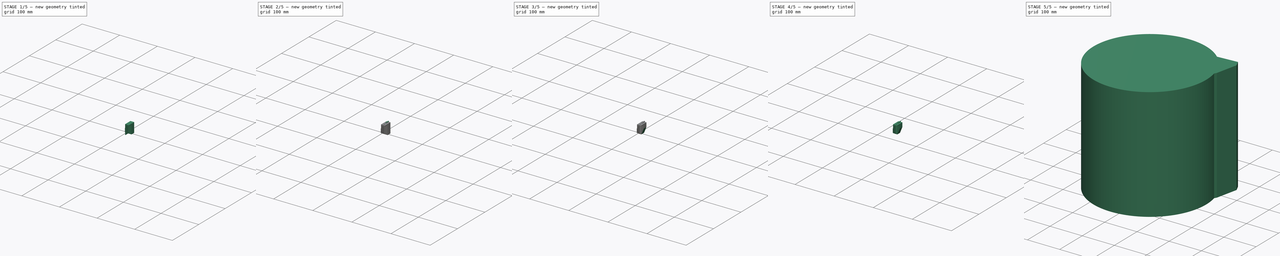
[diagram: build sequence overview — one tinted view per stage of 5, left to right]
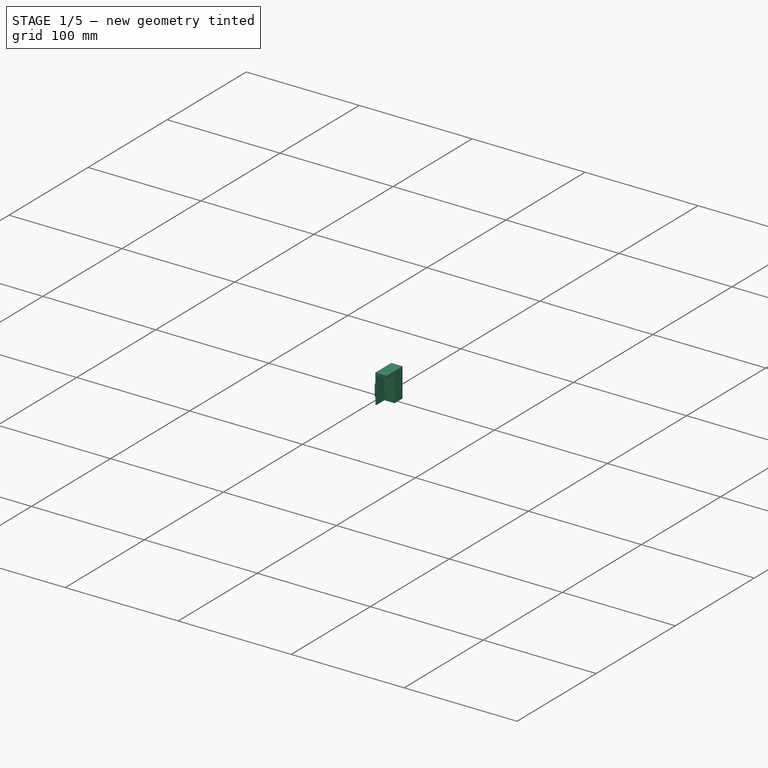
[diagram: stage 1 of 5 — iso view after this stage's code; geometry added in this stage tinted green]
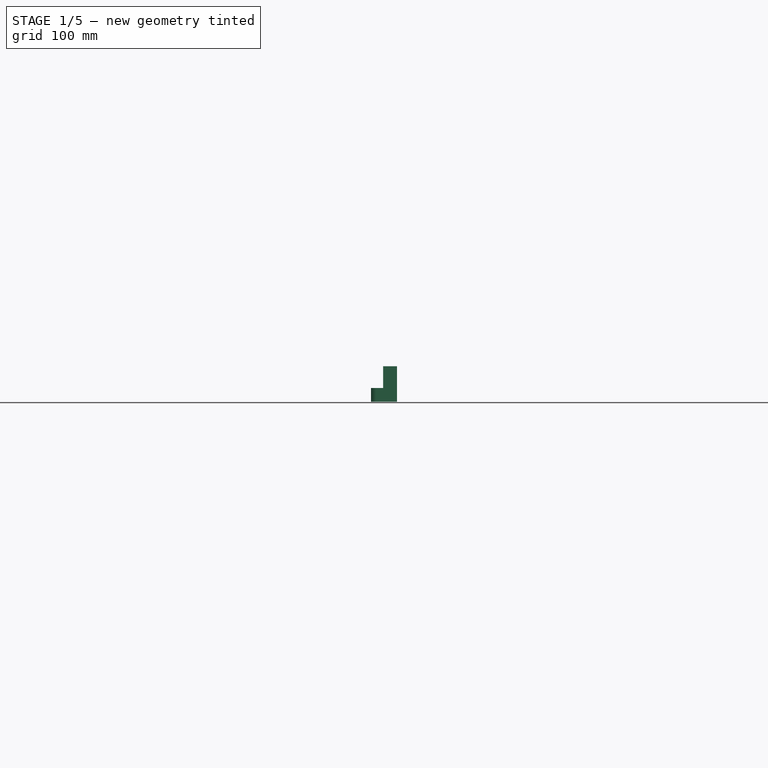
[diagram: stage 1 of 5 — front view after this stage's code; geometry added in this stage tinted green]
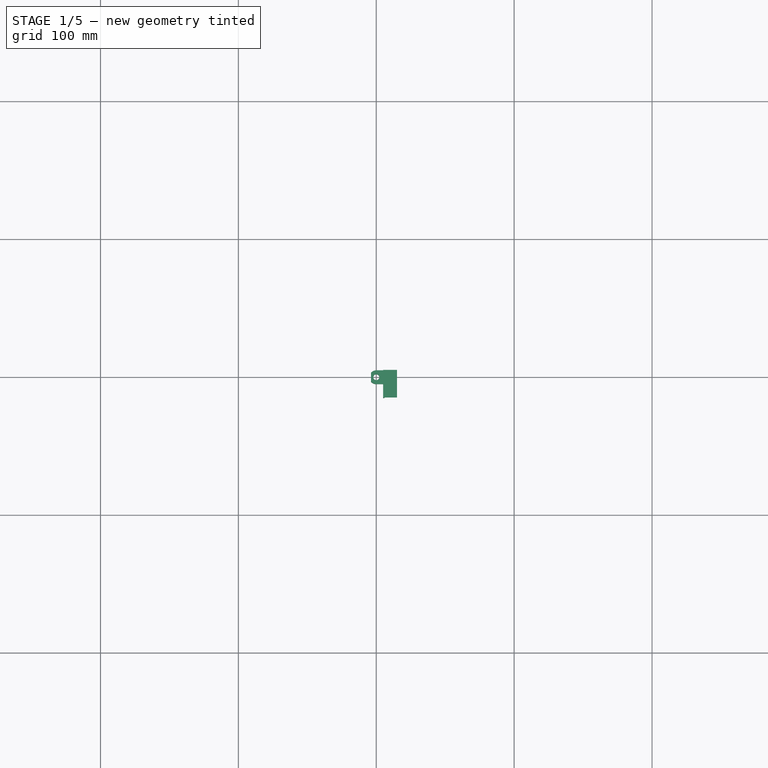
[diagram: stage 1 of 5 — top view after this stage's code; geometry added in this stage tinted green]
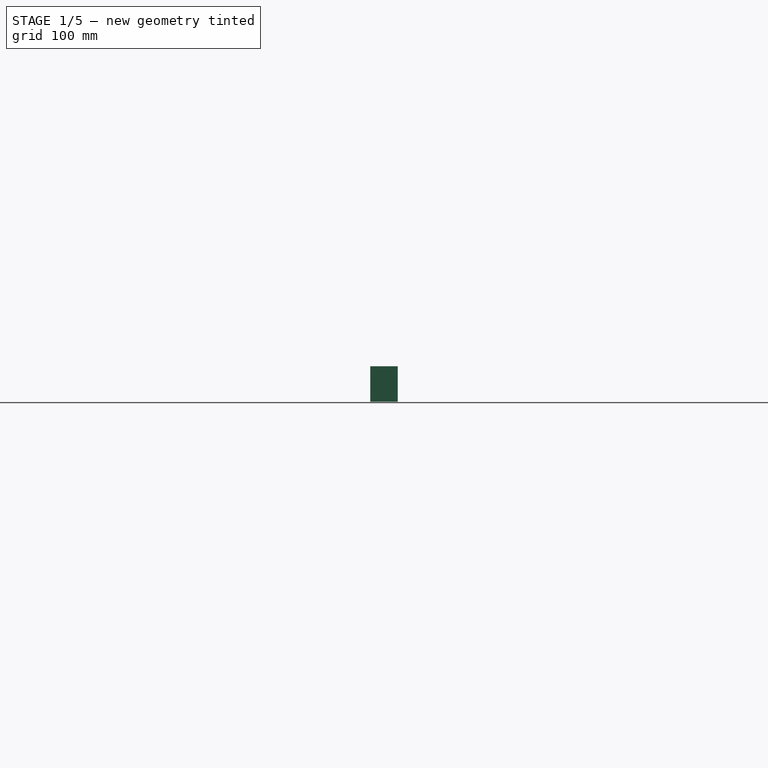
[diagram: stage 1 of 5 — right view after this stage's code; geometry added in this stage tinted green]
FCSTD DOCUMENT  (FreeCAD 2023.131R26244 +5365 (Git))
Label: robot_holonome
License: Creative Commons Attribution-NoDerivatives
LicenseURL: http://creativecommons.org/licenses/by-nd/4.0/
objects: App::Link×18, Sketcher::SketchObject×9, PartDesign::Pad×7, PartDesign::Chamfer×6, App::DocumentObjectGroup×5, PartDesign::Body×5, PartDesign::Fillet×4, App::Part×4, App::VRMLObject×2, PartDesign::Pocket×2, PartDesign::FeatureBase×1, Part::Mirroring×1
note: 83 computed .brp shape members not serialized (recipe doc carries the construction recipe); baked Part::Feature solids carry a one-line shape summary decoded from their .brp
EXTERNAL_REF file=mechanical-parts/structures.FCStd obj=Part007
EXTERNAL_REF file=mechanical-parts/colonne-moteur.FCStd obj=Part005
EXTERNAL_REF file=mechanical-parts/structures.FCStd obj=Body024
EXTERNAL_REF file=mechanical-parts/structures.FCStd obj=Part010
EXTERNAL_REF file=mechanical-parts/structures.FCStd obj=Part011
EXTERNAL_REF file=mechanical-parts/structures.FCStd obj=Part012
EXTERNAL_REF file=electronical-parts/battery-assembled.FCStd obj=Part
EXTERNAL_REF file=electronical-parts/beacon_assembled.FCStd obj=Part
EXTERNAL_REF file=mechanical-parts/colonne-moteur.FCStd obj=Body072
EXTERNAL_REF file=mechanical-parts/colonne-moteur.FCStd obj=Body074
EXTERNAL_REF file=mechanical-parts/colonne-moteur.FCStd obj=Body076
EXTERNAL_REF file=mechanical-parts/colonne-moteur.FCStd obj=Part009
EXTERNAL_REF file=mechanical-parts/colonne-moteur.FCStd obj=Body085
EXTERNAL_REF file=electronical-parts/deplacement-sensor.FCStd obj=Part

FEATURE [PartDesign::Body] Body002  label="Perimètre Déployé"
  AutoGroupSolids = false
  ClaimAllChildren = false
  ExportMode = 0
  Group = -> [Sketch002,Pad002]
  InvalidShape = false
  Origin = -> Origin003
  SingleSolid = true
  Tip = -> Pad002
  TreeRank = 50
  ValidateShape = true
  _ExportChildren = -> [Pad002]
  _GroupVersion = 1
FEATURE [App::DocumentObjectGroup] Group004  label="Périmètres"
  ClaimAllChildren = true
  ExportMode = 1
  Group = -> [Body001,Body,Body002]
  TreeRank = 53
  _GroupVersion = 1
FEATURE [App::Link] Link035  label="Link035(EnsembleCarterEquipeLED)"
  AutoLinkLabel = true
  AutoPlacement = true
  LinkPlacement = pos=(38.9711,-22.5,0) rot=(0,0,1;4.18879rad)
  LinkedObject = -> <external mechanical-parts/colonne-moteur.FCStd>#Part009
  Placement = pos=(38.9711,-22.5,0) rot=(0,0,1;4.18879rad)
  SyncGroupVisibility = false
  TreeRank = 59
  _LinkVersion = 1
FEATURE [App::VRMLObject] MainBoard_2023  label="MainBoard-2023"
  TreeRank = 64
FEATURE [Sketcher::SketchObject] Sketch003
  ArcFitTolerance = 1e-06
  AttachmentSupport = -> [XY_Plane005]
  ExternalBSplineMaxDegree = 0
  ExternalBSplineTolerance = 0
  FullyConstrained = true
  InternalTolerance = 1e-06
  InvalidShape = false
  MakeInternals = false
  MapMode = 5
  Support = -> [XY_Plane005]
  TreeRank = 87
  ValidateShape = true
  sketch-geometry (4):
    g0: Circle CenterX=8.3626e-12 CenterY=-5.2062e-12 CenterZ=0 NormalX=0 NormalY=0 NormalZ=1 AngleXU=0 Radius=2.15
    g1: Circle [constr] CenterX=8.3626e-12 CenterY=-5.2062e-12 CenterZ=0 NormalX=0 NormalY=0 NormalZ=1 AngleXU=0 Radius=5
    g2: LineSegment StartX=-3.8 StartY=3.24962 StartZ=0 EndX=-3.8 EndY=-3.24962 EndZ=0
    g3: ArcOfCircle CenterX=8.3626e-12 CenterY=-5.2062e-12 CenterZ=0 NormalX=0 NormalY=0 NormalZ=1 AngleXU=0 Radius=5 StartAngle=3.84908 EndAngle=8.71729
  constraints (10):
    c: Coincident(g0,g-1)
    c: Diameter(g0) = 4.3
    c: Coincident(g1,g0)
    c: Diameter(g1) = 10
    c: PointOnObject(g2,g1)
    c: Vertical(g2)
    c: Coincident(g3,g0)
    c: Coincident(g3,g2)
    c: Coincident(g3,g2)
    c: DistanceX(g2,g0) = 3.8
FEATURE [PartDesign::Pad] Pad003
  AddSubType = 0
  AlongSketchNormal = false
  AutoTaperInnerAngle = false
  CheckUpToFaceLimits = true
  ClaimChildren = false
  Direction = (0,0,1)
  Fit = 0
  FitJoin = 0
  InnerFit = 0
  InnerFitJoin = 0
  InvalidShape = false
  Length = 10
  Length2 = 100
  Linearize = true
  NewSolid = false
  Profile = -> Sketch003
  Refine = true
  Reversed = true
  Suppress = false
  TaperInnerAngle = 0
  TaperInnerAngleRev = 0
  TreeRank = 88
  Type = 0
  ValidateShape = true
  _ProfileBasedVersion = 1
FEATURE [Sketcher::SketchObject] Sketch004
  ArcFitTolerance = 1e-06
  AttachmentSupport = -> [XY_Plane005]
  ExternalBSplineMaxDegree = 0
  ExternalBSplineTolerance = 0
  ExternalGeometry = -> [Pad003]
  FullyConstrained = true
  InternalTolerance = 1e-06
  InvalidShape = false
  MakeInternals = false
  MapMode = 5
  Support = -> [XY_Plane005]
  TreeRank = 89
  ValidateShape = true
  sketch-geometry (6):
    g0: LineSegment StartX=7.635e-13 StartY=5 StartZ=0 EndX=15 EndY=5 EndZ=0
    g1: LineSegment StartX=15 StartY=5 StartZ=0 EndX=15 EndY=-5 EndZ=0
    g2: LineSegment StartX=15 StartY=-5 StartZ=0 EndX=1.16263e-11 EndY=-5 EndZ=0
    g3: ArcOfCircle CenterX=-6.5426e-12 CenterY=1.87137e-11 CenterZ=0 NormalX=0 NormalY=0 NormalZ=1 AngleXU=0 Radius=3 StartAngle=4.71239 EndAngle=7.85398
    g4: LineSegment StartX=7.635e-13 StartY=3 StartZ=0 EndX=7.635e-13 EndY=5 EndZ=0
    g5: LineSegment StartX=3.91808e-11 StartY=-3 StartZ=0 EndX=1.16262e-11 EndY=-5 EndZ=0
  constraints (17):
    c: PointOnObject(g0,g-2)
    c: Horizontal(g0)
    c: Coincident(g1,g0)
    c: Vertical(g1)
    c: Coincident(g2,g1)
    c: Horizontal(g2)
    c: Symmetric(g2,g0,g-1)
    c: PointOnObject(g0,g-3)
    c: Coincident(g3,g-3)
    c: PointOnObject(g3,g-2)
    c: Coincident(g4,g3)
    c: Coincident(g4,g0)
    c: Vertical(g4)
    c: Coincident(g5,g3)
    c: Coincident(g5,g2)
    c: Radius(g3) = 3
    c: DistanceX(g3,g0) = 15
FEATURE [PartDesign::Pad] Pad004
  AddSubType = 0
  AlongSketchNormal = false
  AutoTaperInnerAngle = false
  BaseFeature = -> Pad003
  CheckUpToFaceLimits = true
  ClaimChildren = false
  Direction = (0,0,1)
  Fit = 0
  FitJoin = 0
  InnerFit = 0
  InnerFitJoin = 0
  InvalidShape = false
  Length = 4
  Length2 = 100
  Linearize = true
  NewSolid = false
  Profile = -> Sketch004
  Refine = true
  Reversed = true
  Suppress = false
  TaperInnerAngle = 0
  TaperInnerAngleRev = 0
  TreeRank = 90
  Type = 3
  UpToFace = -> Pad003 [Face5]
  ValidateShape = true
  _ProfileBasedVersion = 1
FEATURE [Sketcher::SketchObject] Sketch005
  ArcFitTolerance = 1e-06
  AttachmentSupport = -> [XY_Plane005]
  ExternalBSplineMaxDegree = 0
  ExternalBSplineTolerance = 0
  ExternalGeometry = -> [Pad004]
  FullyConstrained = true
  InternalTolerance = 1e-06
  InvalidShape = false
  MakeInternals = false
  MapMode = 5
  Support = -> [XY_Plane005]
  TreeRank = 91
  ValidateShape = true
  sketch-geometry (4):
    g0: LineSegment StartX=15 StartY=5 StartZ=0 EndX=5 EndY=5 EndZ=0
    g1: LineSegment StartX=5 StartY=5 StartZ=0 EndX=5 EndY=-15 EndZ=0
    g2: LineSegment StartX=5 StartY=-15 StartZ=0 EndX=15 EndY=-15 EndZ=0
    g3: LineSegment StartX=15 StartY=-15 StartZ=0 EndX=15 EndY=5 EndZ=0
  constraints (11):
    c: Coincident(g0,g1)
    c: Coincident(g1,g2)
    c: Coincident(g2,g3)
    c: Coincident(g3,g0)
    c: Horizontal(g0)
    c: Horizontal(g2)
    c: Vertical(g1)
    c: Vertical(g3)
    c: Coincident(g0,g-3)
    c: DistanceX(g0,g0) = 10
    c: DistanceY(g3,g3) = 20
FEATURE [PartDesign::Pad] Pad005
  AddSubType = 0
  AlongSketchNormal = false
  AutoTaperInnerAngle = false
  BaseFeature = -> Pad004
  CheckUpToFaceLimits = true
  ClaimChildren = false
  Direction = (0,0,1)
  Fit = 0
  FitJoin = 0
  InnerFit = 0
  InnerFitJoin = 0
  InvalidShape = false
  Length = 15.8
  Length2 = 10
  Linearize = true
  NewSolid = false
  Profile = -> Sketch005
  Refine = true
  Suppress = false
  TaperInnerAngle = 0
  TaperInnerAngleRev = 0
  TreeRank = 92
  Type = 4
  ValidateShape = true
  _ProfileBasedVersion = 1
FEATURE [Sketcher::SketchObject] Sketch006
  ArcFitTolerance = 1e-06
  AttachmentSupport = -> [Pad005]
  ExternalBSplineMaxDegree = 0
  ExternalBSplineTolerance = 0
  ExternalGeometry = -> [Pad005]
  FullyConstrained = true
  InternalTolerance = 1e-06
  InvalidShape = false
  MakeInternals = false
  MapMode = 5
  Placement = pos=(0,0,-10) rot=(1,0,0;3.14159rad)
  Support = -> [Pad005]
  TreeRank = 93
  ValidateShape = true
  sketch-geometry (4):
    g0: LineSegment StartX=15 StartY=15 StartZ=0 EndX=6 EndY=15 EndZ=0
    g1: LineSegment StartX=6 StartY=15 StartZ=0 EndX=6 EndY=5 EndZ=0
    g2: LineSegment StartX=6 StartY=5 StartZ=0 EndX=15 EndY=5 EndZ=0
    g3: LineSegment StartX=15 StartY=5 StartZ=0 EndX=15 EndY=15 EndZ=0
  constraints (11):
    c: Coincident(g0,g1)
    c: Coincident(g1,g2)
    c: Coincident(g2,g3)
    c: Coincident(g3,g0)
    c: Horizontal(g0)
    c: Horizontal(g2)
    c: Vertical(g1)
    c: Vertical(g3)
    c: Coincident(g0,g-3)
    c: DistanceX(g-3,g0) = 1
    c: PointOnObject(g1,g-4)
FEATURE [PartDesign::Pocket] Pocket
  AddSubType = 1
  AutoTaperInnerAngle = false
  BaseFeature = -> Pad005
  CheckUpToFaceLimits = true
  ClaimChildren = false
  Fit = 0
  FitJoin = 0
  InnerFit = 0
  InnerFitJoin = 0
  InvalidShape = false
  Length = 22.8
  Length2 = 100
  Linearize = true
  NewSolid = false
  Profile = -> Sketch006
  Refine = true
  Suppress = false
  TaperInnerAngle = 0
  TaperInnerAngleRev = 0
  TreeRank = 94
  Type = 0
  ValidateShape = true
  _ProfileBasedVersion = 1
  _Version = 1
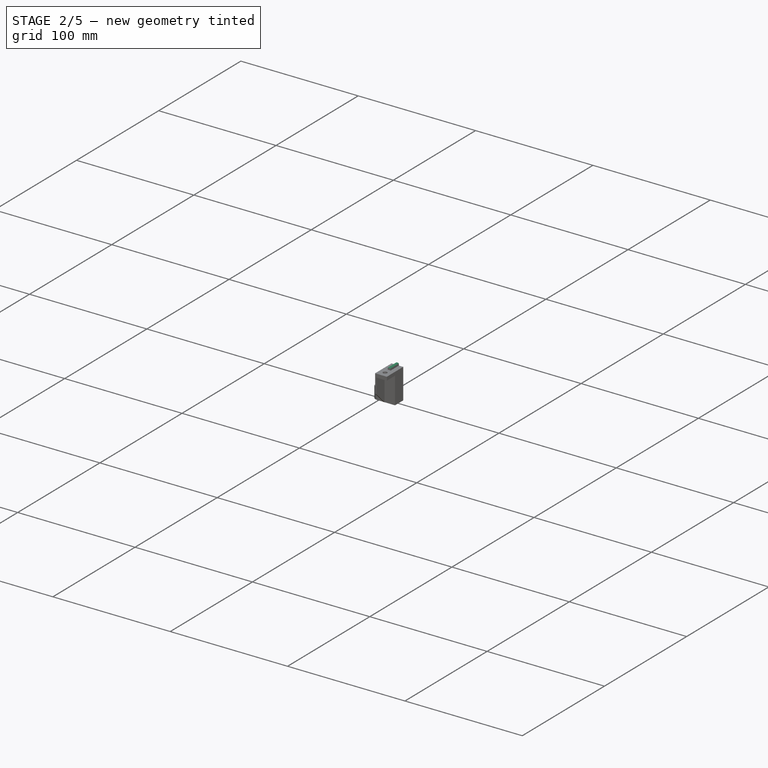
[diagram: stage 2 of 5 — iso view after this stage's code; geometry added in this stage tinted green]
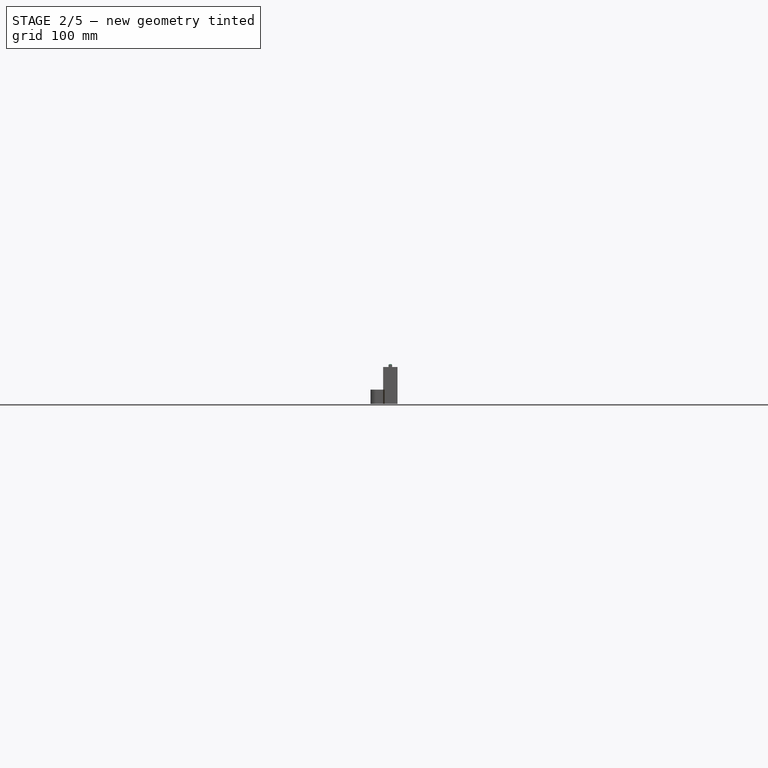
[diagram: stage 2 of 5 — front view after this stage's code; geometry added in this stage tinted green]
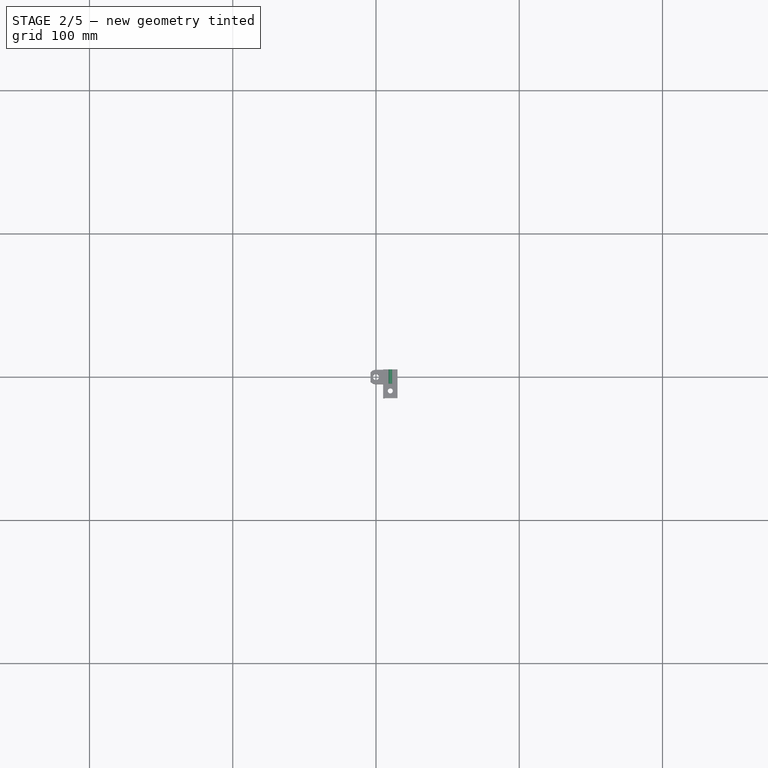
[diagram: stage 2 of 5 — top view after this stage's code; geometry added in this stage tinted green]
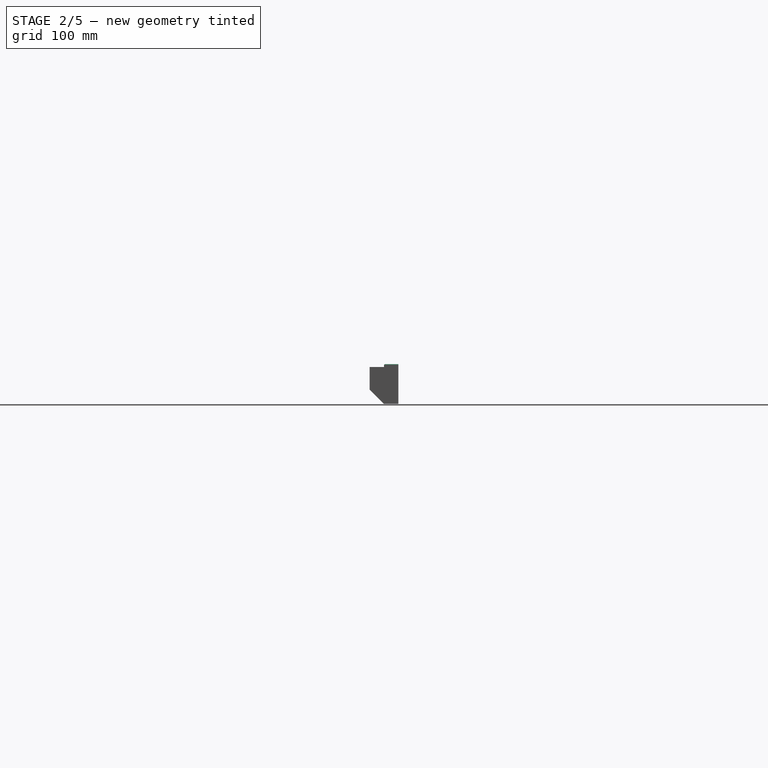
[diagram: stage 2 of 5 — right view after this stage's code; geometry added in this stage tinted green]
FEATURE [Sketcher::SketchObject] Sketch007
  ArcFitTolerance = 1e-06
  AttachmentSupport = -> [XY_Plane005]
  ExternalBSplineMaxDegree = 0
  ExternalBSplineTolerance = 0
  FullyConstrained = true
  InternalTolerance = 1e-06
  InvalidShape = false
  MakeInternals = false
  MapMode = 5
  Support = -> [XY_Plane005]
  TreeRank = 95
  ValidateShape = true
  sketch-geometry (1):
    g0: Circle CenterX=10 CenterY=-10 CenterZ=0 NormalX=0 NormalY=0 NormalZ=1 AngleXU=0 Radius=1.75
  constraints (3):
    c: DistanceX(g-1,g0) = 10
    c: Diameter(g0) = 3.5
    c: DistanceY(g0,g-1) = 10
FEATURE [PartDesign::Pocket] Pocket001
  AddSubType = 1
  AutoTaperInnerAngle = false
  BaseFeature = -> Pocket
  CheckUpToFaceLimits = true
  ClaimChildren = false
  Fit = 0
  FitJoin = 0
  InnerFit = 0
  InnerFitJoin = 0
  InvalidShape = false
  Length = 5
  Length2 = 100
  Linearize = true
  NewSolid = false
  Profile = -> Sketch007
  Refine = true
  Reversed = true
  Suppress = false
  TaperInnerAngle = 0
  TaperInnerAngleRev = 0
  TreeRank = 96
  Type = 1
  ValidateShape = true
  _ProfileBasedVersion = 1
  _Version = 1
FEATURE [Sketcher::SketchObject] Sketch008
  ArcFitTolerance = 1e-06
  AttachmentSupport = -> [Pocket001]
  ExternalBSplineMaxDegree = 0
  ExternalBSplineTolerance = 0
  ExternalGeometry = -> [Pocket001]
  FullyConstrained = true
  InternalTolerance = 1e-06
  InvalidShape = false
  MakeInternals = false
  MapMode = 5
  Placement = pos=(-2.7828e-12,5,-9.576e-12) rot=(0,0.707107,0.707107;3.14159rad)
  Support = -> [Pocket001]
  TreeRank = 97
  ValidateShape = true
  sketch-geometry (5):
    g0: LineSegment StartX=-11.25 StartY=15.8 StartZ=0 EndX=-8.75 EndY=15.8 EndZ=0
    g1: LineSegment StartX=-8.75 StartY=15.8 StartZ=0 EndX=-8.75 EndY=17.8 EndZ=0
    g2: LineSegment StartX=-8.75 StartY=17.8 StartZ=0 EndX=-11.25 EndY=17.8 EndZ=0
    g3: LineSegment StartX=-11.25 StartY=17.8 StartZ=0 EndX=-11.25 EndY=15.8 EndZ=0
    g4: GeomPoint [constr] X=-10 Y=15.8 Z=0
  constraints (12):
    c: Coincident(g0,g1)
    c: Coincident(g1,g2)
    c: Coincident(g2,g3)
    c: Coincident(g3,g0)
    c: Horizontal(g0)
    c: Horizontal(g2)
    c: Vertical(g1)
    c: Vertical(g3)
    c: DistanceX(g2,g2) = 2.5
    c: DistanceY(g1,g1) = 2
    c: Symmetric(g-3,g-3,g4)
    c: Symmetric(g0,g0,g4)
FEATURE [PartDesign::Pad] Pad006
  AddSubType = 0
  AlongSketchNormal = false
  AutoTaperInnerAngle = false
  BaseFeature = -> Pocket001
  CheckUpToFaceLimits = true
  ClaimChildren = false
  Direction = (-5.566e-13,1,-1.915e-12)
  Fit = 0
  FitJoin = 0
  InnerFit = 0
  InnerFitJoin = 0
  InvalidShape = false
  Length = 10
  Length2 = 100
  Linearize = true
  NewSolid = false
  Profile = -> Sketch008
  Refine = true
  Reversed = true
  Suppress = false
  TaperInnerAngle = 0
  TaperInnerAngleRev = 0
  TreeRank = 98
  Type = 0
  ValidateShape = true
  _ProfileBasedVersion = 1
FEATURE [PartDesign::Chamfer] Chamfer
  AddSubType = 0
  Angle = 45
  Base = -> Pad006 [Edge51,Edge46,Edge49]
  BaseFeature = -> Pad006
  ChamferType = 0
  FlipDirection = false
  InvalidShape = false
  NewSolid = false
  Refine = true
  Size = 0.5
  Size2 = 1
  SupportTransform = false
  Suppress = false
  TreeRank = 99
  ValidateShape = true
FEATURE [PartDesign::Chamfer] Chamfer001
  AddSubType = 0
  Angle = 45
  Base = -> Chamfer [Edge44]
  BaseFeature = -> Chamfer
  ChamferType = 0
  FlipDirection = false
  InvalidShape = false
  NewSolid = false
  Refine = true
  Size = 10
  Size2 = 1
  SupportTransform = false
  Suppress = false
  TreeRank = 100
  ValidateShape = true
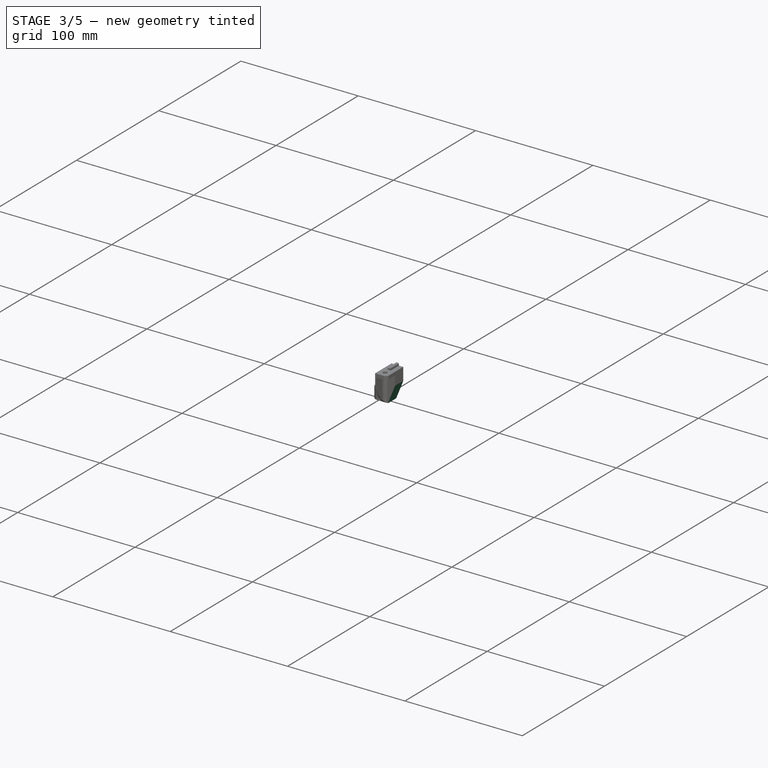
[diagram: stage 3 of 5 — iso view after this stage's code; geometry added in this stage tinted green]
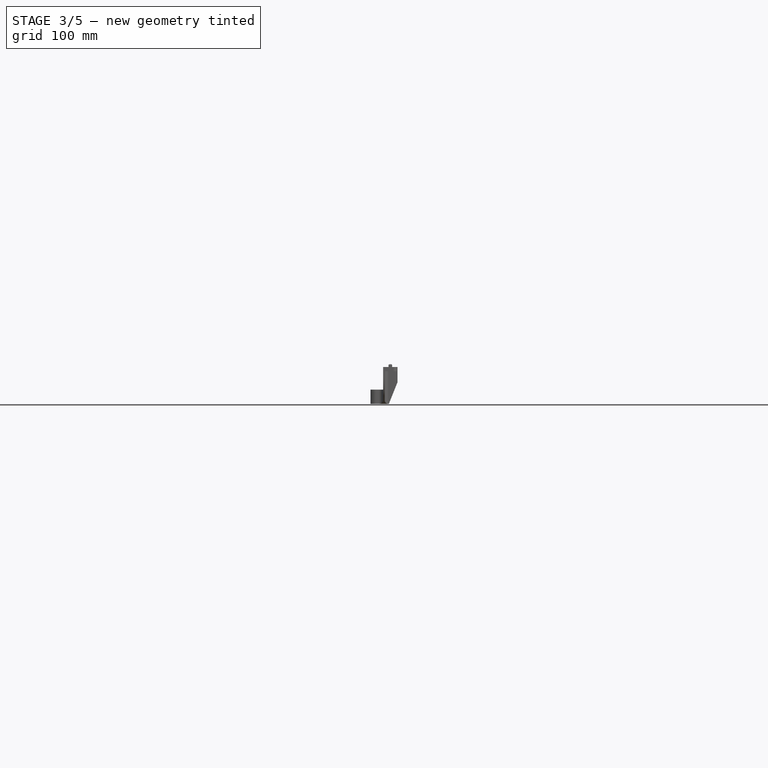
[diagram: stage 3 of 5 — front view after this stage's code; geometry added in this stage tinted green]
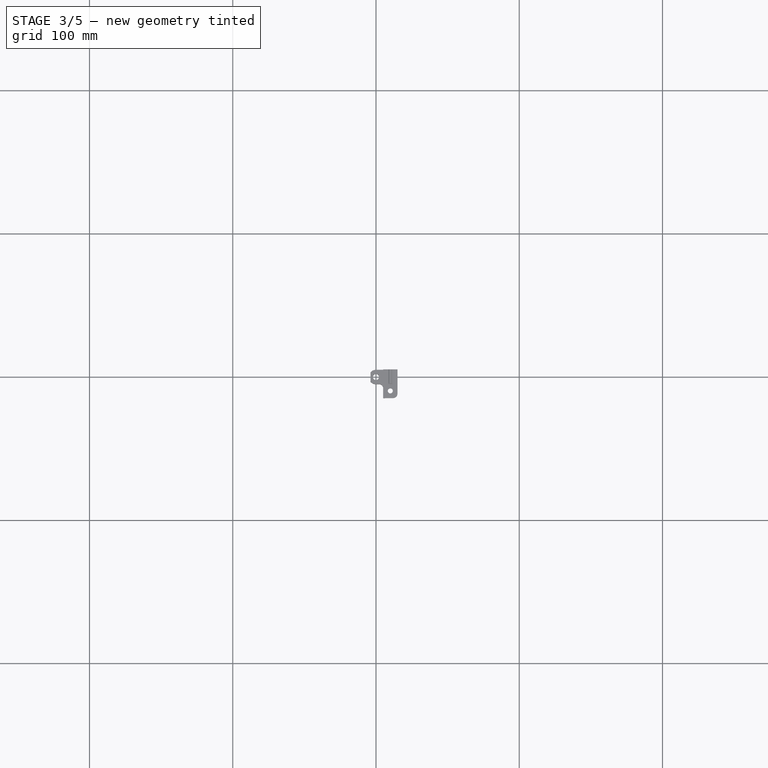
[diagram: stage 3 of 5 — top view after this stage's code; geometry added in this stage tinted green]
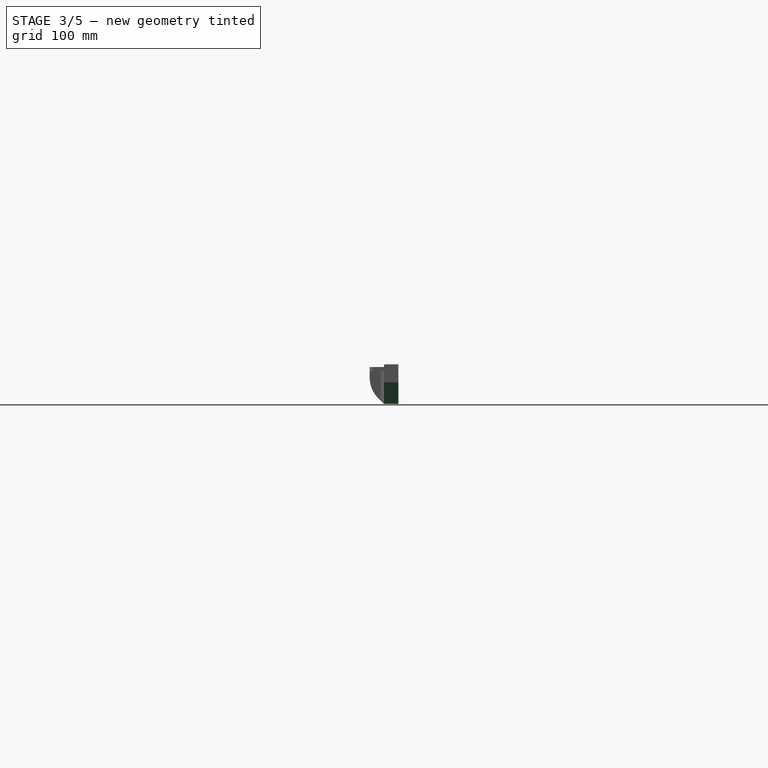
[diagram: stage 3 of 5 — right view after this stage's code; geometry added in this stage tinted green]
FEATURE [PartDesign::Fillet] Fillet
  AddSubType = 0
  Base = -> Chamfer001 [Edge8]
  BaseFeature = -> Chamfer001
  InvalidShape = false
  NewSolid = false
  Radius = 20
  Refine = true
  SupportTransform = false
  Suppress = false
  TreeRank = 101
  ValidateShape = true
FEATURE [PartDesign::Chamfer] Chamfer002
  AddSubType = 0
  Angle = 45
  Base = -> Fillet [Edge45]
  BaseFeature = -> Fillet
  ChamferType = 1
  FlipDirection = false
  InvalidShape = false
  NewSolid = false
  Refine = true
  Size = 15
  Size2 = 6
  SupportTransform = false
  Suppress = false
  TreeRank = 102
  ValidateShape = true
FEATURE [PartDesign::Fillet] Fillet001
  AddSubType = 0
  Base = -> Chamfer002 [Edge55]
  BaseFeature = -> Chamfer002
  InvalidShape = false
  NewSolid = false
  Radius = 2.9
  Refine = true
  SupportTransform = false
  Suppress = false
  TreeRank = 103
  ValidateShape = true
FEATURE [PartDesign::Fillet] Fillet002
  AddSubType = 0
  Base = -> Fillet001 [Edge49]
  BaseFeature = -> Fillet001
  InvalidShape = false
  NewSolid = false
  Radius = 3
  Refine = true
  SupportTransform = false
  Suppress = false
  TreeRank = 104
  ValidateShape = true
FEATURE [PartDesign::Fillet] Fillet003
  AddSubType = 0
  Base = -> Fillet002 [Edge38]
  BaseFeature = -> Fillet002
  InvalidShape = false
  NewSolid = false
  Radius = 2.9
  Refine = true
  SupportTransform = false
  Suppress = false
  TreeRank = 105
  ValidateShape = true
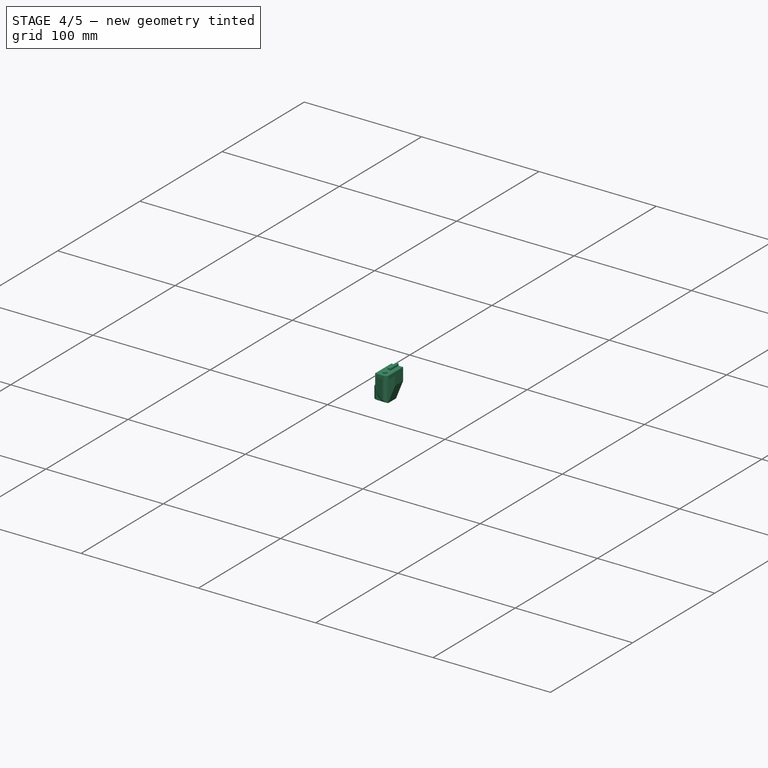
[diagram: stage 4 of 5 — iso view after this stage's code; geometry added in this stage tinted green]
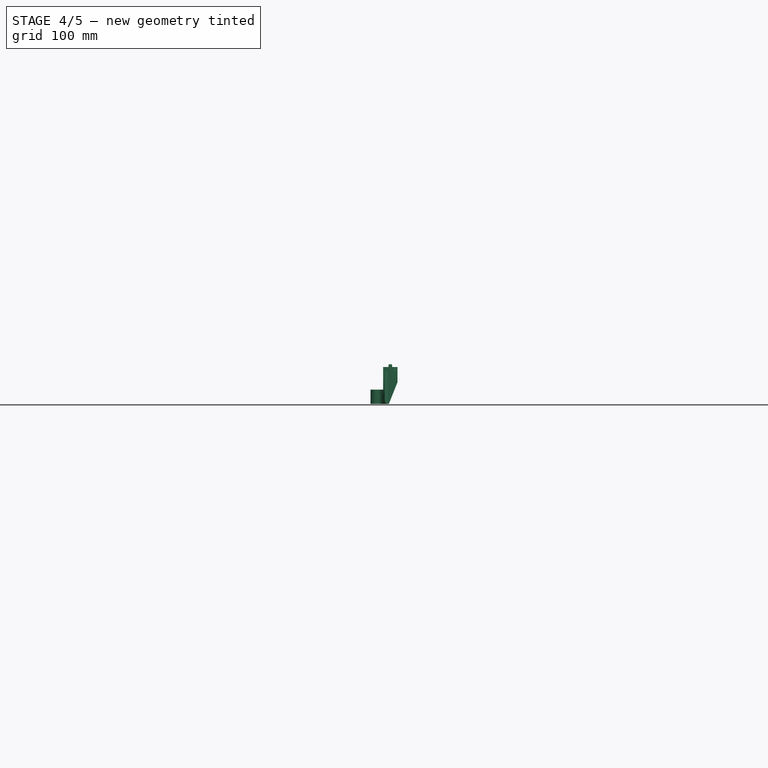
[diagram: stage 4 of 5 — front view after this stage's code; geometry added in this stage tinted green]
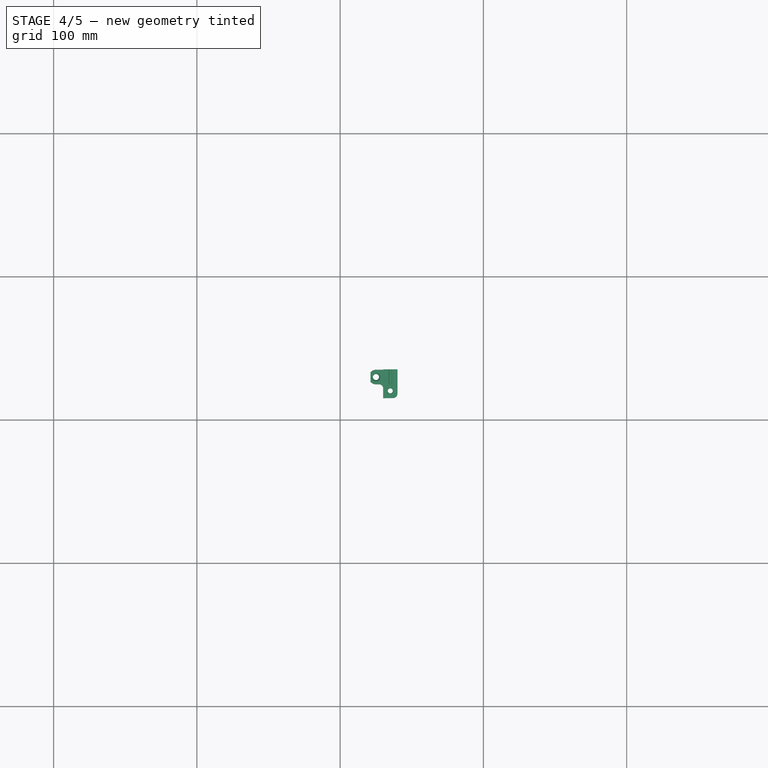
[diagram: stage 4 of 5 — top view after this stage's code; geometry added in this stage tinted green]
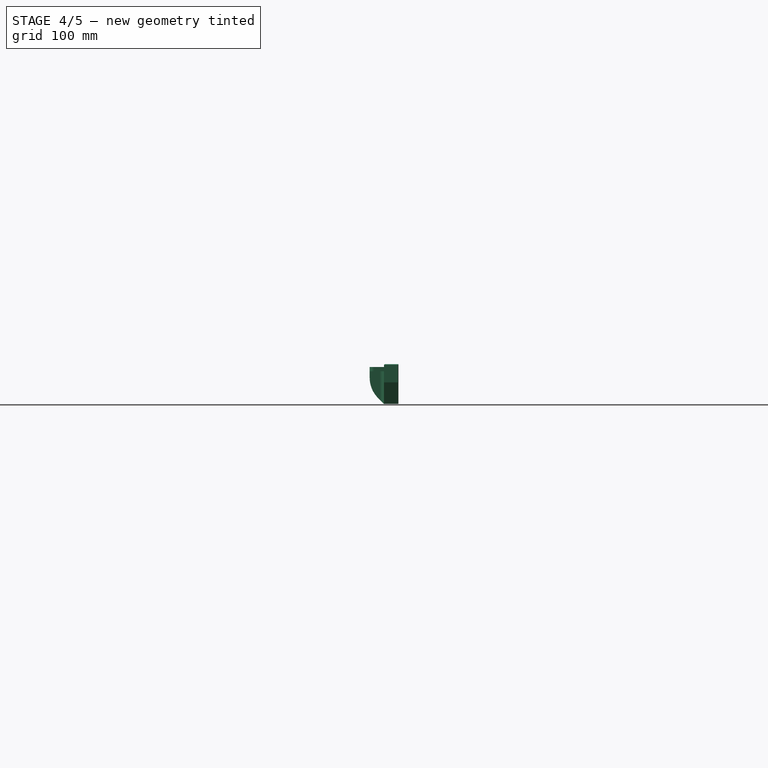
[diagram: stage 4 of 5 — right view after this stage's code; geometry added in this stage tinted green]
FEATURE [PartDesign::Chamfer] Chamfer003
  AddSubType = 0
  Angle = 45
  Base = -> Fillet003 [Edge65,Edge37]
  BaseFeature = -> Fillet003
  ChamferType = 0
  FlipDirection = false
  InvalidShape = false
  NewSolid = false
  Refine = true
  Size = 0.4
  Size2 = 1
  SupportTransform = false
  Suppress = false
  TreeRank = 106
  ValidateShape = true
FEATURE [PartDesign::Chamfer] Chamfer004
  AddSubType = 0
  Angle = 45
  Base = -> Chamfer003 [Edge61,Edge68]
  BaseFeature = -> Chamfer003
  ChamferType = 0
  FlipDirection = false
  InvalidShape = false
  NewSolid = false
  Refine = true
  Size = 1
  Size2 = 1
  SupportTransform = false
  Suppress = false
  TreeRank = 107
  ValidateShape = true
FEATURE [PartDesign::Chamfer] Chamfer005
  AddSubType = 0
  Angle = 45
  Base = -> Chamfer004 [Edge32,Edge33,Edge35,Edge37,Edge40,Edge38,Edge36,Edge34,Edge10,Edge41,Edge39,Edge42]
  BaseFeature = -> Chamfer004
  ChamferType = 0
  FlipDirection = false
  InvalidShape = false
  NewSolid = false
  Refine = true
  Size = 0.2
  Size2 = 1
  SupportTransform = false
  Suppress = false
  TreeRank = 108
  ValidateShape = true
FEATURE [PartDesign::Body] Body003  label="StandBottomRight"
  AutoGroupSolids = false
  ClaimAllChildren = false
  ExportMode = 0
  Group = -> [Sketch003,Pad003,Sketch004,Pad004,Sketch005,Pad005,Sketch006,Pocket,Sketch007,Pocket001,Sketch008,Pad006,Chamfer,Chamfer001,Fillet,Chamfer002,Fillet001,Fillet002,Fillet003,Chamfer003,Chamfer004,Chamfer005]
  InvalidShape = false
  Origin = -> Origin005
  Placement = pos=(25,-70,-0.8) rot=(0,0,1;0rad)
  SingleSolid = true
  Tip = -> Chamfer005
  TreeRank = 86
  ValidateShape = true
  _ExportChildren = -> [Pad003,Pad004,Pad005,Pocket,Pocket001,Pad006,Chamfer,Chamfer001,Fillet,Chamfer002,Fillet001,Fillet002,Fillet003,Chamfer003,Chamfer004,Chamfer005]
  _GroupVersion = 1
FEATURE [App::Link] Link036  label="StandTopLeft"
  AutoLinkLabel = true
  AutoPlacement = true
  LinkPlacement = pos=(-25,70.0001,-0.800049) rot=(0,0,1;3.14159rad)
  LinkedObject = -> Body003
  Placement = pos=(-25,70.0001,-0.800049) rot=(0,0,1;3.14159rad)
  ShowElement = false
  SyncGroupVisibility = false
  TreeRank = 109
  _LinkVersion = 1
FEATURE [PartDesign::FeatureBase] Clone
  BaseFeature = -> Body003
  InvalidShape = false
  NewSolid = false
  Placement = pos=(25,-70,-0.8) rot=(0,0,1;0rad)
  Suppress = false
  TreeRank = 119
  ValidateShape = true
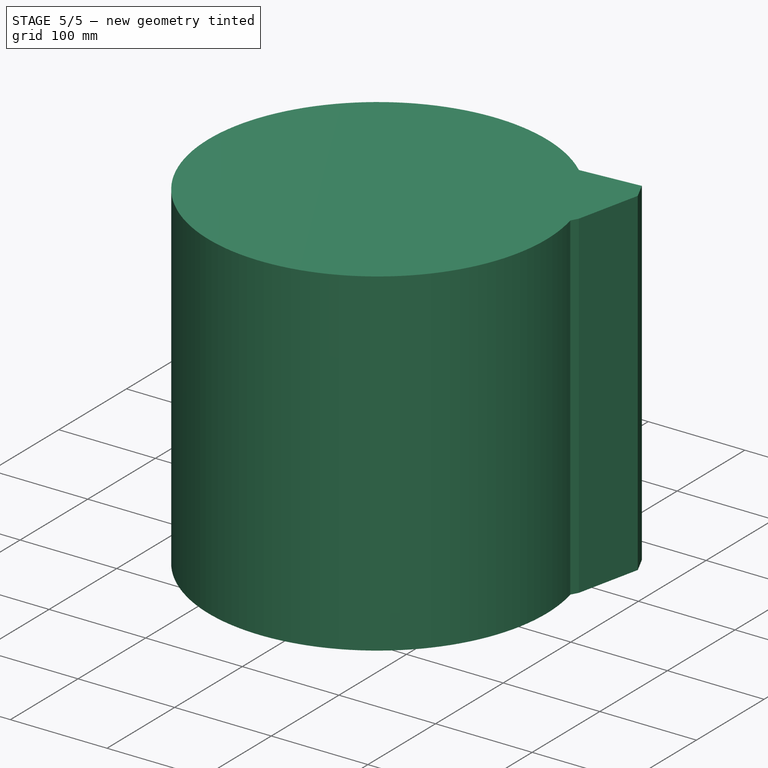
[diagram: stage 5 of 5 — iso view after this stage's code; geometry added in this stage tinted green]
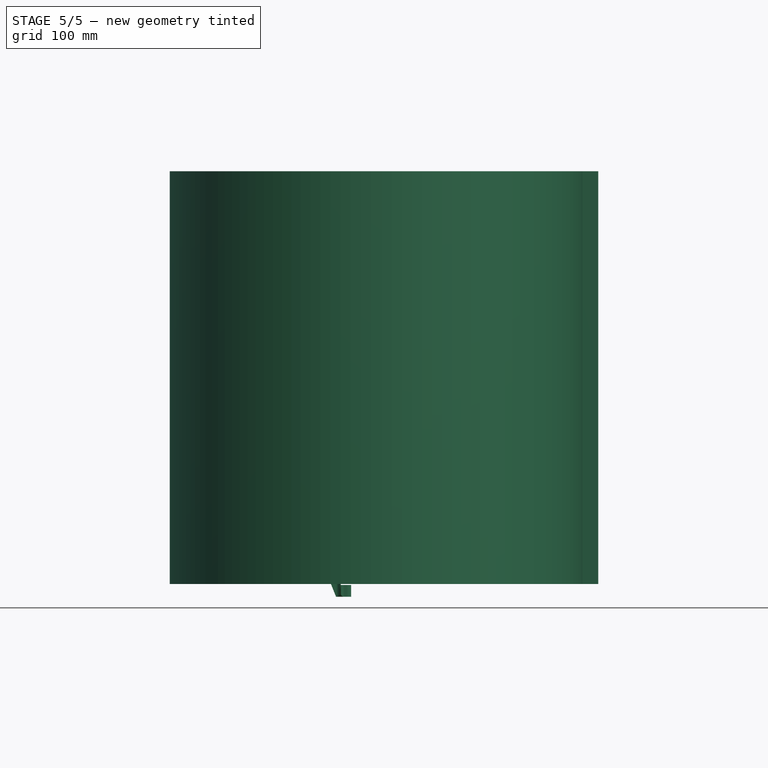
[diagram: stage 5 of 5 — front view after this stage's code; geometry added in this stage tinted green]
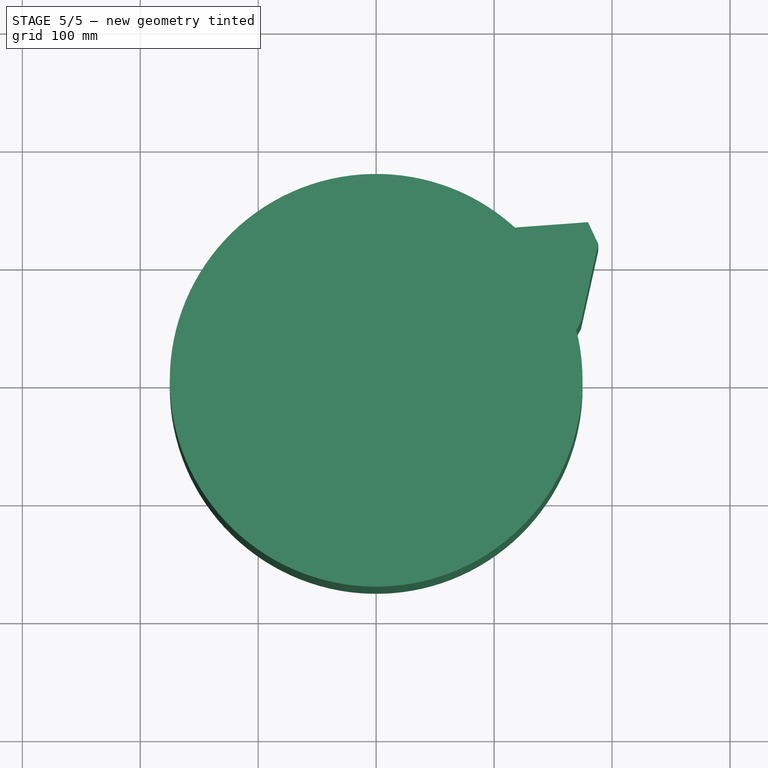
[diagram: stage 5 of 5 — top view after this stage's code; geometry added in this stage tinted green]
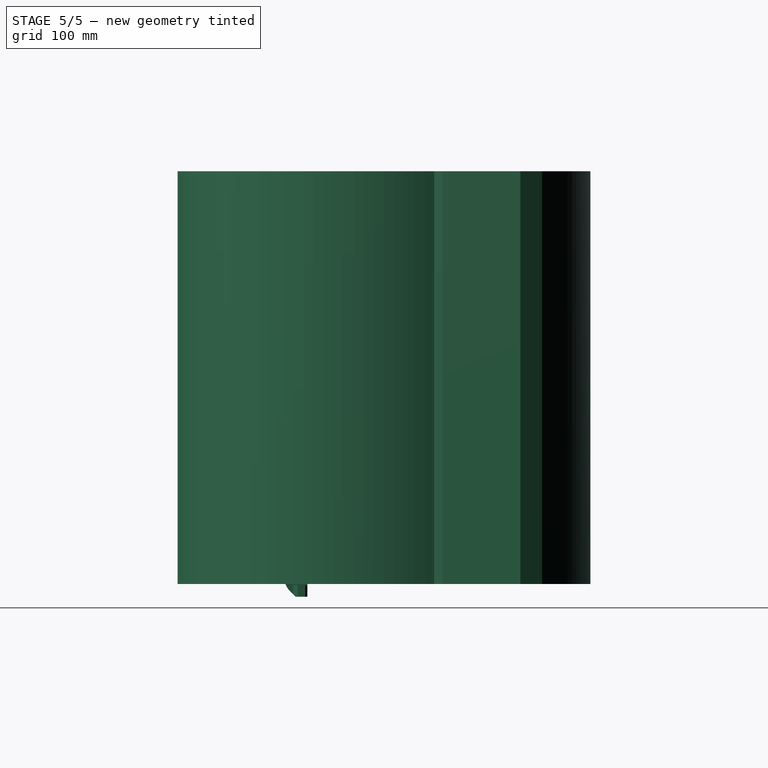
[diagram: stage 5 of 5 — right view after this stage's code; geometry added in this stage tinted green]
FEATURE [App::Link] Link  label="EnsembleSemelle"
  AutoLinkLabel = true
  AutoPlacement = true
  LinkedObject = -> <external mechanical-parts/structures.FCStd>#Part007
  SyncGroupVisibility = false
  TreeRank = 0
  _LinkVersion = 1
FEATURE [App::Link] Link001  label="ColonneMoteur01"
  AutoLinkLabel = true
  AutoPlacement = true
  LinkPlacement = pos=(0,45,-7.62939e-06) rot=(0,0,1;0rad)
  LinkedObject = -> <external mechanical-parts/colonne-moteur.FCStd>#Part005
  Placement = pos=(0,45,-7.62939e-06) rot=(0,0,1;0rad)
  SyncGroupVisibility = false
  TreeRank = 0
  _LinkVersion = 1
FEATURE [App::Link] Link002  label="ColonneMoteur02"
  AutoLinkLabel = true
  AutoPlacement = true
  LinkPlacement = pos=(-38.9711,-22.5,0) rot=(0,0,1;2.0944rad)
  LinkedObject = -> <external mechanical-parts/colonne-moteur.FCStd>#Part005
  Placement = pos=(-38.9711,-22.5,0) rot=(0,0,1;2.0944rad)
  SyncGroupVisibility = false
  TreeRank = 0
  _LinkVersion = 1
FEATURE [App::Link] Link003  label="ColonneMoteur03"
  AutoLinkLabel = true
  AutoPlacement = true
  LinkPlacement = pos=(38.9711,-22.5,0) rot=(0,0,1;4.18879rad)
  LinkedObject = -> <external mechanical-parts/colonne-moteur.FCStd>#Part005
  Placement = pos=(38.9711,-22.5,0) rot=(0,0,1;4.18879rad)
  SyncGroupVisibility = false
  TreeRank = 0
  _LinkVersion = 1
FEATURE [App::Link] Link004  label="PlaqueIntermediaire"
  AutoLinkLabel = true
  AutoPlacement = true
  LinkPlacement = pos=(0,-1.3113e-05,110) rot=(0,0,1;0rad)
  LinkedObject = -> <external mechanical-parts/structures.FCStd>#Body024
  Placement = pos=(0,-1.3113e-05,110) rot=(0,0,1;0rad)
  SyncGroupVisibility = false
  TreeRank = 0
  _LinkVersion = 1
FEATURE [App::Link] Link009  label="Link009(CoinBAU)"
  AutoLinkLabel = true
  AutoPlacement = true
  LinkPlacement = pos=(0,-3.21865e-05,270) rot=(0,0,1;0rad)
  LinkedObject = -> <external mechanical-parts/structures.FCStd>#Part010
  Placement = pos=(0,-3.21865e-05,270) rot=(0,0,1;0rad)
  SyncGroupVisibility = false
  TreeRank = 0
  _LinkVersion = 1
FEATURE [App::Link] Link010  label="Link010(CoinTirette)"
  AutoLinkLabel = true
  AutoPlacement = true
  LinkPlacement = pos=(-2.78743e-05,1.60933e-05,270) rot=(0,0,1;4.18879rad)
  LinkedObject = -> <external mechanical-parts/structures.FCStd>#Part011
  Placement = pos=(-2.78743e-05,1.60933e-05,270) rot=(0,0,1;4.18879rad)
  SyncGroupVisibility = false
  TreeRank = 0
  _LinkVersion = 1
FEATURE [App::Link] Link011  label="Link011(CoinLogo)"
  AutoLinkLabel = true
  AutoPlacement = true
  LinkPlacement = pos=(2.78743e-05,1.60933e-05,270) rot=(0,0,1;2.0944rad)
  LinkedObject = -> <external mechanical-parts/structures.FCStd>#Part012
  Placement = pos=(2.78743e-05,1.60933e-05,270) rot=(0,0,1;2.0944rad)
  SyncGroupVisibility = false
  TreeRank = 0
  _LinkVersion = 1
FEATURE [App::DocumentObjectGroup] Group001  label="Structure"
  ClaimAllChildren = true
  ExportMode = 1
  Group = -> [Link,Link001,Link003,Link002,Link004,Link009,Link010,Link011]
  TreeRank = 0
  _GroupVersion = 1
FEATURE [App::Link] Link013  label="LogementBatterie"
  AutoLinkLabel = true
  AutoPlacement = true
  LinkPlacement = pos=(103.923,-60,120) rot=(0,0,1;4.18879rad)
  LinkedObject = -> <external electronical-parts/battery-assembled.FCStd>#Part
  Placement = pos=(103.923,-60,120) rot=(0,0,1;4.18879rad)
  SyncGroupVisibility = false
  TreeRank = 0
  _LinkVersion = 1
FEATURE [App::Link] Link014  label="BeaconAssembled"
  AutoLinkLabel = true
  AutoPlacement = true
  LinkPlacement = pos=(0,-3.8147e-05,320) rot=(0,0,1;0rad)
  LinkedObject = -> <external electronical-parts/beacon_assembled.FCStd>#Part
  Placement = pos=(0,-3.8147e-05,320) rot=(0,0,1;0rad)
  SyncGroupVisibility = false
  TreeRank = 0
  _LinkVersion = 1
FEATURE [App::Link] Link024  label="Link024(CarterTop)"
  AutoLinkLabel = true
  AutoPlacement = true
  LinkPlacement = pos=(-69.282,-40,320) rot=(0,0,1;2.0944rad)
  LinkedObject = -> <external mechanical-parts/colonne-moteur.FCStd>#Body072
  Placement = pos=(-69.282,-40,320) rot=(0,0,1;2.0944rad)
  SyncGroupVisibility = false
  TreeRank = 10
  _LinkVersion = 1
FEATURE [App::Link] Link026  label="Link026(CarterTopUsb)"
  AutoLinkLabel = true
  AutoPlacement = true
  LinkPlacement = pos=(1.14441e-05,45,-3.62396e-05) rot=(0,0,1;0rad)
  LinkedObject = -> <external mechanical-parts/colonne-moteur.FCStd>#Body074
  Placement = pos=(1.14441e-05,45,-3.62396e-05) rot=(0,0,1;0rad)
  SyncGroupVisibility = false
  TreeRank = 12
  _LinkVersion = 1
FEATURE [App::Link] Link030  label="Link030(CarterSide480*320)"
  AutoLinkLabel = true
  AutoPlacement = true
  LinkPlacement = pos=(6.56498e-06,120,-6.19888e-06) rot=(0,0,1;0rad)
  LinkedObject = -> <external mechanical-parts/colonne-moteur.FCStd>#Body076
  Placement = pos=(6.56498e-06,120,-6.19888e-06) rot=(0,0,1;0rad)
  SyncGroupVisibility = false
  TreeRank = 16
  _LinkVersion = 1
FEATURE [Sketcher::SketchObject] Sketch
  ArcFitTolerance = 0
  ExternalBSplineMaxDegree = 0
  ExternalBSplineTolerance = 0
  FullyConstrained = true
  InternalTolerance = 1e-06
  InvalidShape = false
  MakeInternals = false
  MapMode = 2
  TreeRank = 27
  ValidateShape = true
  sketch-geometry (1):
    g0: Circle CenterX=0 CenterY=0 CenterZ=0 NormalX=0 NormalY=0 NormalZ=1 AngleXU=0 Radius=163.134
  constraints (2):
    c: Coincident(g0,g-1)
    c: Diameter(g0) = 326.268
FEATURE [PartDesign::Pad] Pad
  AddSubType = 0
  AlongSketchNormal = false
  AutoTaperInnerAngle = false
  CheckUpToFaceLimits = true
  ClaimChildren = false
  Direction = (0,0,1)
  Fit = 0
  FitJoin = 0
  InnerFit = 0
  InnerFitJoin = 0
  InvalidShape = false
  Length = 350
  Length2 = 100
  Linearize = true
  NewSolid = false
  Profile = -> Sketch
  Refine = true
  Suppress = false
  TaperInnerAngle = 0
  TaperInnerAngleRev = 0
  TreeRank = 28
  Type = 0
  ValidateShape = true
  _ProfileBasedVersion = 1
FEATURE [PartDesign::Body] Body  label="Limite Non Déployé"
  AutoGroupSolids = false
  ClaimAllChildren = false
  ExportMode = 0
  Group = -> [Sketch,Pad]
  InvalidShape = false
  Origin = -> Origin001
  SingleSolid = true
  Tip = -> Pad
  TreeRank = 26
  ValidateShape = true
  _ExportChildren = -> [Pad]
  _GroupVersion = 1
FEATURE [Sketcher::SketchObject] Sketch001
  ArcFitTolerance = 0
  ExternalBSplineMaxDegree = 0
  ExternalBSplineTolerance = 0
  FullyConstrained = true
  InternalTolerance = 1e-06
  InvalidShape = false
  MakeInternals = false
  MapMode = 2
  TreeRank = 39
  ValidateShape = true
  sketch-geometry (1):
    g0: Circle CenterX=0 CenterY=0 CenterZ=0 NormalX=0 NormalY=0 NormalZ=1 AngleXU=0 Radius=175
  constraints (2):
    c: Coincident(g0,g-1)
    c: Diameter(g0) = 350
FEATURE [PartDesign::Pad] Pad001
  AddSubType = 0
  AlongSketchNormal = false
  AutoTaperInnerAngle = false
  CheckUpToFaceLimits = true
  ClaimChildren = false
  Direction = (0,0,1)
  Fit = 0
  FitJoin = 0
  InnerFit = 0
  InnerFitJoin = 0
  InvalidShape = false
  Length = 350
  Length2 = 100
  Linearize = true
  NewSolid = false
  Profile = -> Sketch001
  Refine = true
  Suppress = false
  TaperInnerAngle = 0
  TaperInnerAngleRev = 0
  TreeRank = 40
  Type = 0
  ValidateShape = true
  _ProfileBasedVersion = 1
FEATURE [PartDesign::Body] Body001  label="Limite Déployé"
  AutoGroupSolids = false
  ClaimAllChildren = false
  ExportMode = 0
  Group = -> [Sketch001,Pad001]
  InvalidShape = false
  Origin = -> Origin002
  SingleSolid = true
  Tip = -> Pad001
  TreeRank = 38
  ValidateShape = true
  _ExportChildren = -> [Pad001]
  _GroupVersion = 1
FEATURE [Sketcher::SketchObject] Sketch002
  ArcFitTolerance = 0
  ExternalBSplineMaxDegree = 0
  ExternalBSplineTolerance = 0
  FullyConstrained = false
  InternalTolerance = 1e-06
  InvalidShape = false
  MakeInternals = false
  MapMode = 2
  TreeRank = 51
  ValidateShape = true
  sketch-geometry (12):
    g0: LineSegment StartX=-85.2682 StartY=-99.392 StartZ=0 EndX=-14.2583 EndY=-111.375 EndZ=0
    g1: LineSegment StartX=-14.2583 StartY=-111.375 StartZ=0 EndX=-3.60679 EndY=-111.819 EndZ=0
    g2: LineSegment StartX=-3.60679 StartY=-111.819 StartZ=0 EndX=86.9308 EndY=-99.392 EndZ=0
    g3: LineSegment StartX=86.9308 StartY=-99.392 StartZ=0 EndX=114.447 EndY=-65.2184 EndZ=0
    g4: LineSegment StartX=114.447 StartY=-65.2184 StartZ=0 EndX=129.537 EndY=-30.1573 EndZ=0
    g5: LineSegment StartX=129.537 StartY=-30.1573 StartZ=0 EndX=173.666 EndY=49.5134 EndZ=0
    g6: LineSegment StartX=173.666 StartY=49.5134 StartZ=0 EndX=188.302 EndY=115.646 EndZ=0
    g7: LineSegment StartX=188.302 StartY=115.646 StartZ=0 EndX=179.629 EndY=134.077 EndZ=0
    g8: LineSegment StartX=179.629 StartY=134.077 StartZ=0 EndX=57.6393 EndY=125.177 EndZ=0
    g9: LineSegment StartX=57.6393 StartY=125.177 StartZ=0 EndX=-44.4375 EndY=125.177 EndZ=0
    g10: LineSegment StartX=-85.2682 StartY=-99.392 StartZ=0 EndX=-127.43 EndY=-23.5001 EndZ=0
    g11: LineSegment StartX=-127.43 StartY=-23.5001 StartZ=0 EndX=-44.4375 EndY=125.177 EndZ=0
  constraints (13):
    c: Coincident(g0,g1)
    c: Coincident(g1,g2)
    c: Coincident(g2,g3)
    c: Coincident(g3,g4)
    c: Coincident(g4,g5)
    c: Coincident(g5,g6)
    c: Coincident(g6,g7)
    c: Coincident(g7,g8)
    c: Coincident(g8,g9)
    c: Horizontal(g9)
    c: Coincident(g0,g10)
    c: Coincident(g10,g11)
    c: Coincident(g11,g9)
FEATURE [PartDesign::Pad] Pad002
  AddSubType = 0
  AlongSketchNormal = false
  AutoTaperInnerAngle = false
  CheckUpToFaceLimits = true
  ClaimChildren = false
  Direction = (0,0,1)
  Fit = 0
  FitJoin = 0
  InnerFit = 0
  InnerFitJoin = 0
  InvalidShape = false
  Length = 350
  Length2 = 100
  Linearize = true
  NewSolid = false
  Profile = -> Sketch002
  Refine = true
  Suppress = false
  TaperInnerAngle = 0
  TaperInnerAngleRev = 0
  TreeRank = 52
  Type = 0
  ValidateShape = true
  _ProfileBasedVersion = 1
FEATURE [PartDesign::Body] Body004
  AutoGroupSolids = false
  BaseFeature = -> Body003
  ClaimAllChildren = false
  ExportMode = 0
  Group = -> [Clone]
  InvalidShape = false
  Origin = -> Origin006
  SingleSolid = true
  Tip = -> Clone
  TreeRank = 120
  ValidateShape = true
  _ExportChildren = -> [Clone]
  _GroupVersion = 1
FEATURE [Part::Mirroring] Part__Mirroring  label="StandBottomLeft"
  Base = (0,0,0)
  InvalidShape = false
  Normal = (0,0,1)
  Placement = pos=(0,0,0) rot=(0,1,0;3.14159rad)
  Source = -> Body004
  TreeRank = 121
  ValidateShape = true
FEATURE [App::Link] Link037  label="StandTopRight"
  AutoLinkLabel = true
  AutoPlacement = true
  LinkPlacement = pos=(-1.52588e-05,1.96299e-05,7.62939e-06) rot=(1,0,0;3.14159rad)
  LinkedObject = -> Part__Mirroring
  Placement = pos=(-1.52588e-05,1.96299e-05,7.62939e-06) rot=(1,0,0;3.14159rad)
  ShowElement = false
  SyncGroupVisibility = false
  TreeRank = 122
  _LinkVersion = 1
FEATURE [App::DocumentObjectGroup] Group  label="StandMakerBeamPCB"
  ClaimAllChildren = true
  ExportMode = 1
  Group = -> [Link037,Part__Mirroring,Link036,Body003]
  TreeRank = 123
  _GroupVersion = 1
FEATURE [App::Part] Part003  label="MainBoard"
  ClaimAllChildren = false
  ExportMode = 1
  Group = -> [MainBoard_2023]
  Origin = -> Origin008
  TreeRank = 130
  _ExportChildren = -> [MainBoard_2023]
  _GroupVersion = 1
FEATURE [App::Part] Part001  label="EnsembleMainBoard"
  ClaimAllChildren = false
  ExportMode = 1
  Group = -> [Body003,Link036,Body004,Part__Mirroring,Link037,Group,Part003]
  Origin = -> Origin004
  Placement = pos=(-2.61e-14,95,213) rot=(0,0.707107,0.707107;3.14159rad)
  TreeRank = 63
  _ExportChildren = -> [Group,Part003]
  _GroupVersion = 1
FEATURE [App::VRMLObject] MiniIHM_2023001  label="MiniIHM-2023"
  Resources = MiniIHM_2023001/ | MiniIHM_2023001/
  TreeRank = 144
FEATURE [App::Part] Part002  label="MiniIHM"
  ClaimAllChildren = false
  ExportMode = 1
  Group = -> [MiniIHM_2023001]
  Origin = -> Origin007
  Placement = pos=(0,97.5,309.2) rot=(0,0,1;3.14159rad)
  TreeRank = 127
  _ExportChildren = -> [MiniIHM_2023001]
  _GroupVersion = 1
FEATURE [App::DocumentObjectGroup] Group002  label="Electronique"
  ClaimAllChildren = true
  ExportMode = 1
  Group = -> [Link013,Link014,Part001,Part002]
  TreeRank = 0
  _GroupVersion = 1
FEATURE [App::Link] Link038  label="Link038(DiffuseurLed)"
  AutoLinkLabel = true
  AutoPlacement = true
  LinkPlacement = pos=(0,45,0) rot=(0,0,1;0rad)
  LinkedObject = -> <external mechanical-parts/colonne-moteur.FCStd>#Body085
  Placement = pos=(0,45,0) rot=(0,0,1;0rad)
  ShowElement = false
  SyncGroupVisibility = false
  TreeRank = 145
  _LinkVersion = 1
FEATURE [App::DocumentObjectGroup] Group003  label="Carters"
  ClaimAllChildren = true
  ExportMode = 1
  Group = -> [Link024,Link026,Link030,Link035,Link038]
  TreeRank = 1
  _GroupVersion = 1
FEATURE [App::Link] Link039  label="SensorDeplacement-assembled"
  AutoLinkLabel = true
  AutoPlacement = true
  LinkPlacement = pos=(-2.51e-14,5.96047e-07,-5) rot=(0,0,1;3.14159rad)
  LinkedObject = -> <external electronical-parts/deplacement-sensor.FCStd>#Part
  Placement = pos=(-2.51e-14,5.96047e-07,-5) rot=(0,0,1;3.14159rad)
  SyncGroupVisibility = false
  TreeRank = 146
  _LinkVersion = 1
FEATURE [App::Part] Part  label="RobotHolonome"
  ClaimAllChildren = false
  ExportMode = 1
  Group = -> [Group001,Group002,Link,Link001,Link003,Link002,Link004,Link009,Link010,Link011,Link013,Link014,Group003,Link024,Link026,Link030,Group004,Body001,Body002,Body,Link035,Part001,Part002,Link038,Link039]
  Origin = -> Origin
  TreeRank = 0
  _ExportChildren = -> [Group001,Group002,Group003,Group004,Link039]
  _GroupVersion = 1

RESOLVED EXTERNAL PARTS (link-assembly join: the EXTERNAL_REF files above that resolve inside this repo's crawl, each included once):
---- part electronical-parts/battery-assembled.FCStd = doc fcstd_dd678f5570f6 (77879 chars; too large to inline — full recipe in that document) ----
---- part electronical-parts/beacon_assembled.FCStd = doc fcstd_4fc7284c3a00 (129150 chars; too large to inline — full recipe in that document) ----
---- part electronical-parts/deplacement-sensor.FCStd = doc fcstd_38807eb8fec9 (52320 chars; too large to inline — full recipe in that document) ----
---- part mechanical-parts/colonne-moteur.FCStd = doc fcstd_5c56247f4d53 (170777 chars; too large to inline — full recipe in that document) ----
---- part mechanical-parts/structures.FCStd = doc fcstd_4202ce3a1060 (169128 chars; too large to inline — full recipe in that document) ----
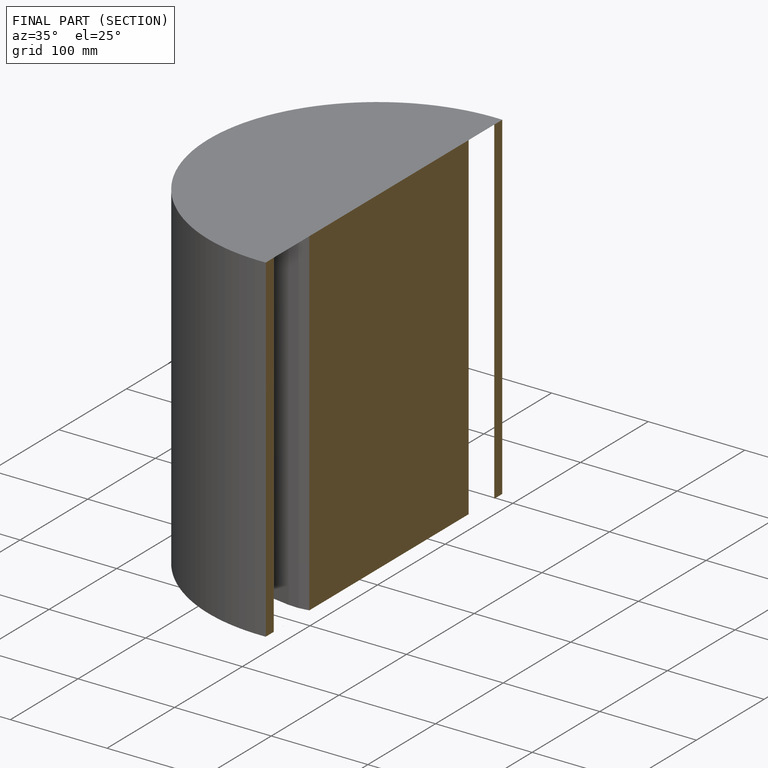
[diagram: finished part — half-section view (interior)]
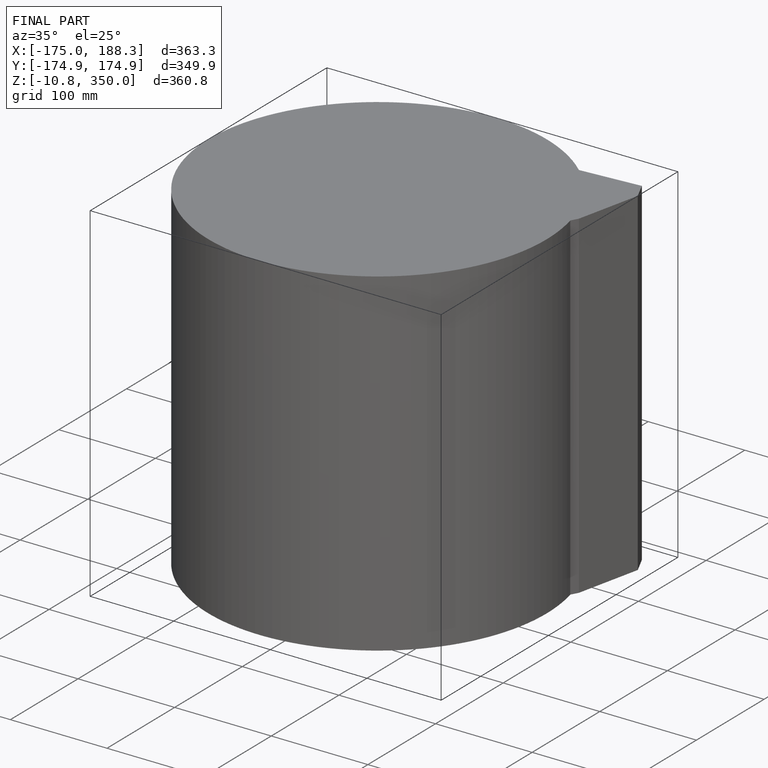
[diagram: finished part — iso view with bounding-box wireframe]
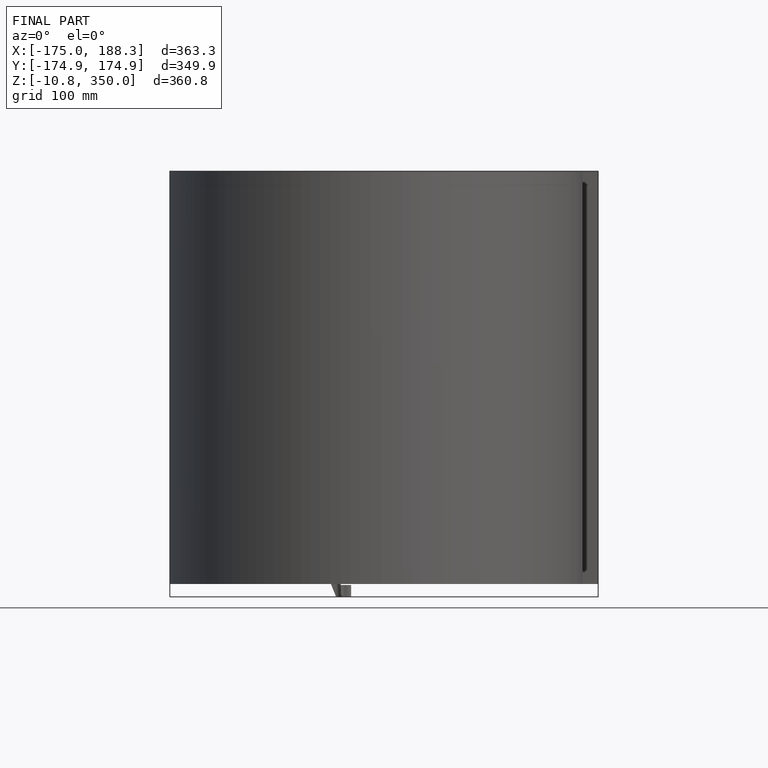
[diagram: finished part — front view with bounding-box wireframe]
